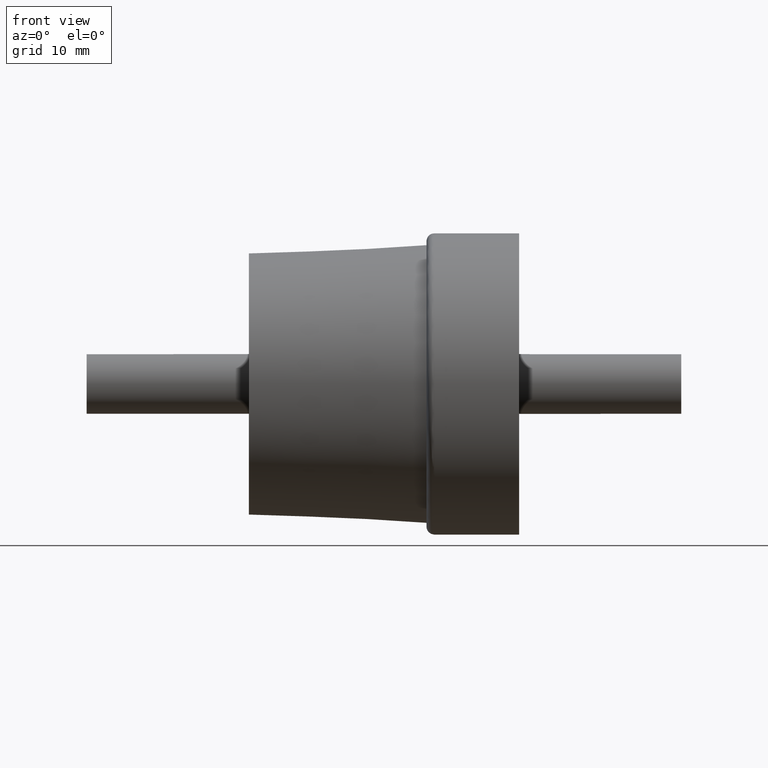
[diagram: clean part render]
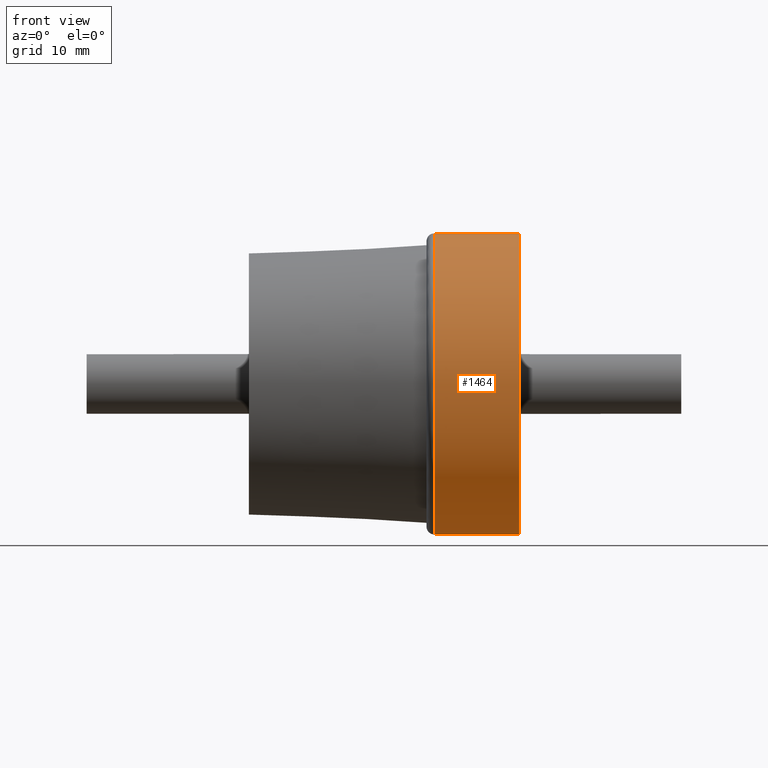
[diagram: same view with one face highlighted and labeled with its STEP entity id]
A machine part, front view. The second image highlights one B-rep face of the part: STEP entity #1464.
In plain terms, the highlighted cylindrical surface (bore or boss wall) has radius 19.5 mm, axis along (1, 0, 0).
Its self-contained STEP definition (entity closure, byte-faithful):
#272=CYLINDRICAL_SURFACE('',#1565,19.5);
#368=FACE_BOUND('',#497,.T.);
#398=FACE_OUTER_BOUND('',#496,.T.);
#496=EDGE_LOOP('',(#1051));
#497=EDGE_LOOP('',(#1052));
#619=CIRCLE('',#1562,19.5);
#621=CIRCLE('',#1566,19.5);
#698=VERTEX_POINT('',#2219);
#700=VERTEX_POINT('',#2225);
#841=EDGE_CURVE('',#698,#698,#619,.T.);
#843=EDGE_CURVE('',#700,#700,#621,.T.);
#1051=ORIENTED_EDGE('',*,*,#843,.F.);
#1052=ORIENTED_EDGE('',*,*,#841,.F.);
#1464=ADVANCED_FACE('',(#398,#368),#272,.T.);
#1562=AXIS2_PLACEMENT_3D('',#2220,#1741,#1742);
#1565=AXIS2_PLACEMENT_3D('',#2224,#1747,#1748);
#1566=AXIS2_PLACEMENT_3D('',#2226,#1749,#1750);
#1741=DIRECTION('center_axis',(-1.,0.,0.));
#1742=DIRECTION('ref_axis',(0.,-1.,1.83697019872103E-16));
#1747=DIRECTION('center_axis',(1.,0.,0.));
#1748=DIRECTION('ref_axis',(0.,1.,0.));
#1749=DIRECTION('center_axis',(1.,0.,0.));
#1750=DIRECTION('ref_axis',(0.,0.,-1.));
#2219=CARTESIAN_POINT('',(6.49999999999999,19.5,-5.97015314584335E-15));
#2220=CARTESIAN_POINT('Origin',(6.49999999999999,0.,0.));
#2224=CARTESIAN_POINT('Origin',(11.5,0.,0.));
#2225=CARTESIAN_POINT('',(17.5,19.5,0.));
#2226=CARTESIAN_POINT('Origin',(17.5,0.,0.));